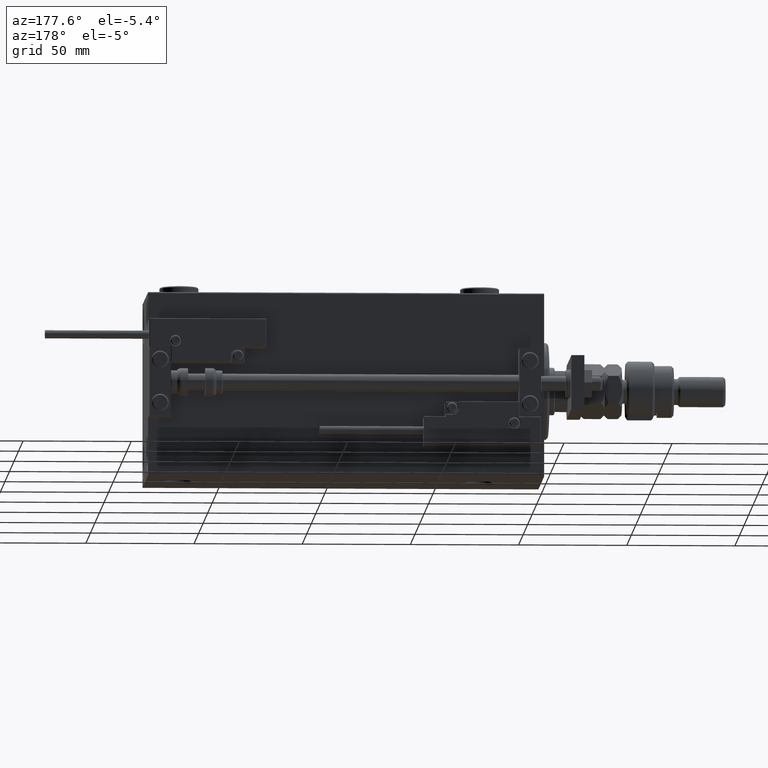
[diagram: clean part render]
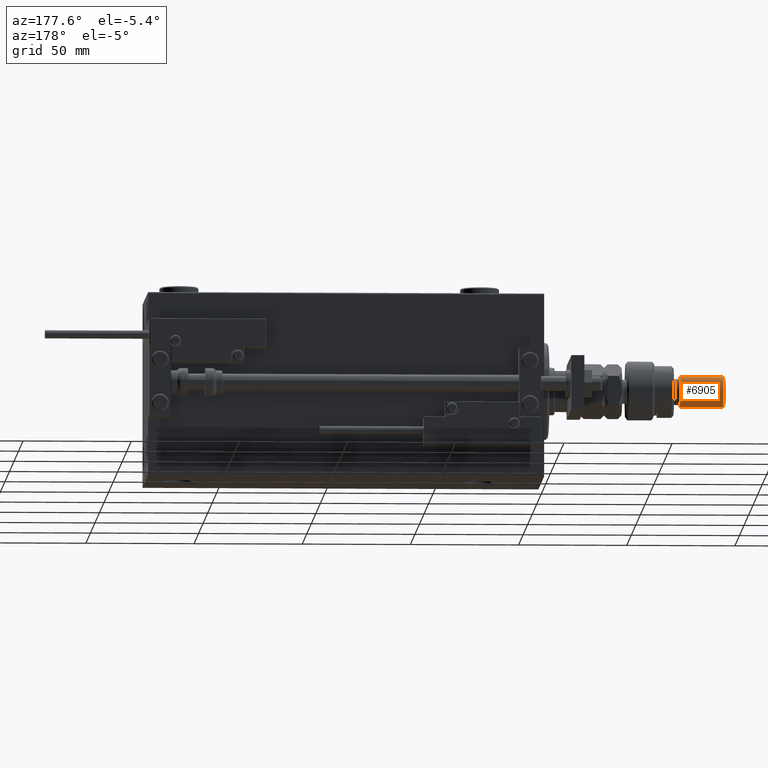
[diagram: same view with one face highlighted and labeled with its STEP entity id]
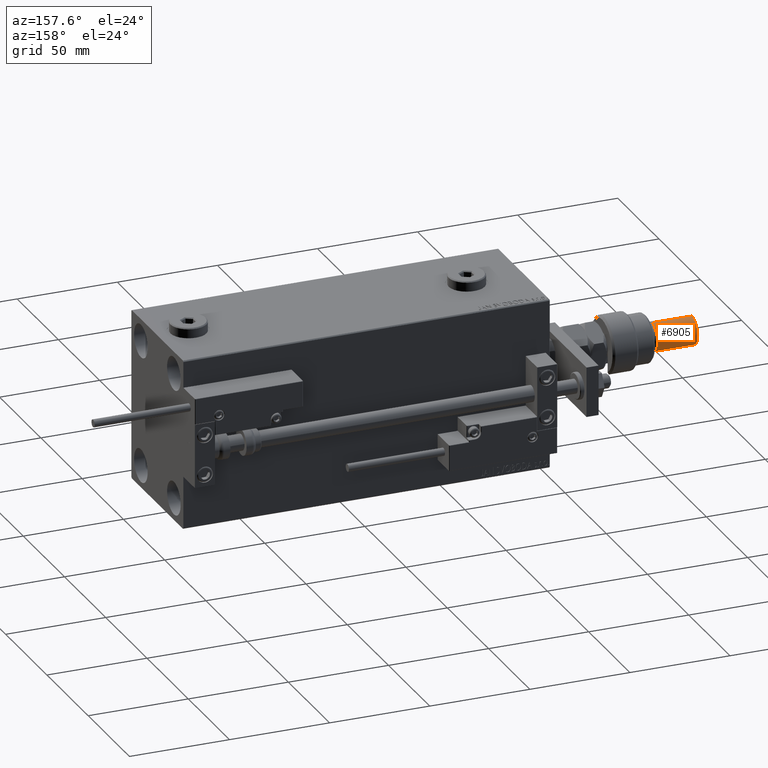
[diagram: same view with one face highlighted and labeled with its STEP entity id]
A machine part, auxiliary view. The second image highlights one B-rep face of the part: STEP entity #6905.
A second angle (auxiliary view) of the same face is appended — the face is thin or edge-on in the first view.
In plain terms, the highlighted cylindrical surface (edge-blend (fillet) strip) has radius 7 mm, axis along (1, -0, -0).
Its self-contained STEP definition (entity closure, byte-faithful):
#941 = ORIENTED_EDGE ( 'NONE', *, *, #27142, .F. ) ;
#1662 = AXIS2_PLACEMENT_3D ( 'NONE', #7364, #6534, #27154 ) ;
#6135 = ORIENTED_EDGE ( 'NONE', *, *, #31051, .T. ) ;
#6144 = CARTESIAN_POINT ( 'NONE',  ( 7.000000000000000000, 8.572527594031473190E-16, 44.99999999999999289 ) ) ;
#6534 = DIRECTION ( 'NONE',  ( 0.000000000000000000, 0.000000000000000000, -1.000000000000000000 ) ) ;
#6905 = ADVANCED_FACE ( 'NONE', ( #51030 ), #13356, .T. ) ;
#7258 = CARTESIAN_POINT ( 'NONE',  ( -7.000000000000000000, 0.000000000000000000, 24.99999999999998934 ) ) ;
#7364 = CARTESIAN_POINT ( 'NONE',  ( 0.000000000000000000, 0.000000000000000000, 44.99999999999999289 ) ) ;
#8341 = VERTEX_POINT ( 'NONE', #7258 ) ;
#11379 = EDGE_CURVE ( 'NONE', #34775, #13675, #30842, .T. ) ;
#11544 = ORIENTED_EDGE ( 'NONE', *, *, #49506, .T. ) ;
#13356 = CYLINDRICAL_SURFACE ( 'NONE', #48660, 7.000000000000000000 ) ;
#13675 = VERTEX_POINT ( 'NONE', #26729 ) ;
#16472 = VECTOR ( 'NONE', #34054, 1000.000000000000000 ) ;
#17042 = VECTOR ( 'NONE', #37994, 1000.000000000000000 ) ;
#17511 = VERTEX_POINT ( 'NONE', #42615 ) ;
#21501 = DIRECTION ( 'NONE',  ( 1.000000000000000000, 0.000000000000000000, 0.000000000000000000 ) ) ;
#21850 = CIRCLE ( 'NONE', #1662, 7.000000000000000000 ) ;
#21876 = DIRECTION ( 'NONE',  ( -0.000000000000000000, -0.000000000000000000, -1.000000000000000000 ) ) ;
#25397 = AXIS2_PLACEMENT_3D ( 'NONE', #25643, #42395, #21501 ) ;
#25643 = CARTESIAN_POINT ( 'NONE',  ( 0.000000000000000000, 0.000000000000000000, 24.99999999999998934 ) ) ;
#25814 = LINE ( 'NONE', #42833, #16472 ) ;
#26263 = CIRCLE ( 'NONE', #25397, 7.000000000000000000 ) ;
#26729 = CARTESIAN_POINT ( 'NONE',  ( 7.000000000000000000, 8.572527594031473190E-16, 24.99999999999998934 ) ) ;
#27142 = EDGE_CURVE ( 'NONE', #17511, #8341, #25814, .T. ) ;
#27154 = DIRECTION ( 'NONE',  ( 1.000000000000000000, 0.000000000000000000, 0.000000000000000000 ) ) ;
#29885 = DIRECTION ( 'NONE',  ( -1.000000000000000000, 0.000000000000000000, 0.000000000000000000 ) ) ;
#30689 = CARTESIAN_POINT ( 'NONE',  ( 0.000000000000000000, 0.000000000000000000, 46.00000000000000000 ) ) ;
#30842 = LINE ( 'NONE', #50915, #17042 ) ;
#31051 = EDGE_CURVE ( 'NONE', #13675, #8341, #26263, .T. ) ;
#34054 = DIRECTION ( 'NONE',  ( -0.000000000000000000, -0.000000000000000000, -1.000000000000000000 ) ) ;
#34775 = VERTEX_POINT ( 'NONE', #6144 ) ;
#37994 = DIRECTION ( 'NONE',  ( -0.000000000000000000, -0.000000000000000000, -1.000000000000000000 ) ) ;
#42395 = DIRECTION ( 'NONE',  ( -0.000000000000000000, -0.000000000000000000, 1.000000000000000000 ) ) ;
#42615 = CARTESIAN_POINT ( 'NONE',  ( -7.000000000000000000, 0.000000000000000000, 44.99999999999999289 ) ) ;
#42833 = CARTESIAN_POINT ( 'NONE',  ( -7.000000000000000000, 0.000000000000000000, 46.00000000000000000 ) ) ;
#46535 = EDGE_LOOP ( 'NONE', ( #11544, #48682, #6135, #941 ) ) ;
#48660 = AXIS2_PLACEMENT_3D ( 'NONE', #30689, #21876, #29885 ) ;
#48682 = ORIENTED_EDGE ( 'NONE', *, *, #11379, .T. ) ;
#49506 = EDGE_CURVE ( 'NONE', #17511, #34775, #21850, .T. ) ;
#50915 = CARTESIAN_POINT ( 'NONE',  ( 7.000000000000000000, 8.572527594031473190E-16, 46.00000000000000000 ) ) ;
#51030 = FACE_OUTER_BOUND ( 'NONE', #46535, .T. ) ;